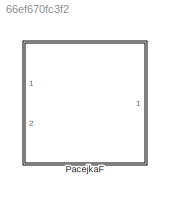
MODEL slx_66ef670fc3f2
KIND model
CONFIG AbsTol = auto
CONFIG EnableMultiTasking = off
CONFIG FixedStep = auto
CONFIG MaxStep = auto
CONFIG MinStep = auto
CONFIG RelTol = 1e-3
CONFIG SampleTimeConstraint = Unconstrained
CONFIG Solver = VariableStepAuto
CONFIG SolverName = VariableStepAuto
CONFIG StartTime = 0.0
CONFIG StopTime = 10.0
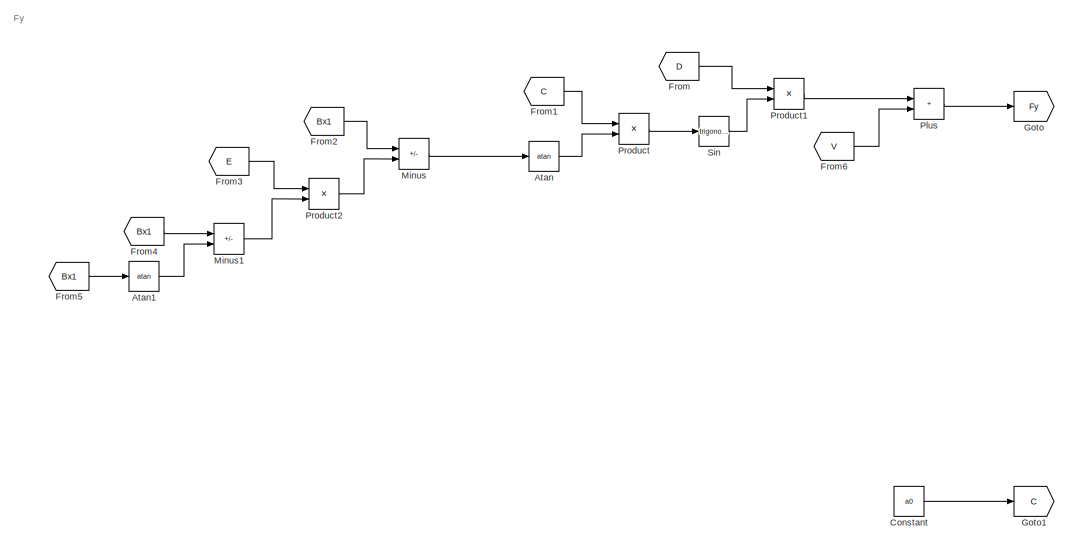
[diagram: PacejkaF - part 1/3, full width, top band]
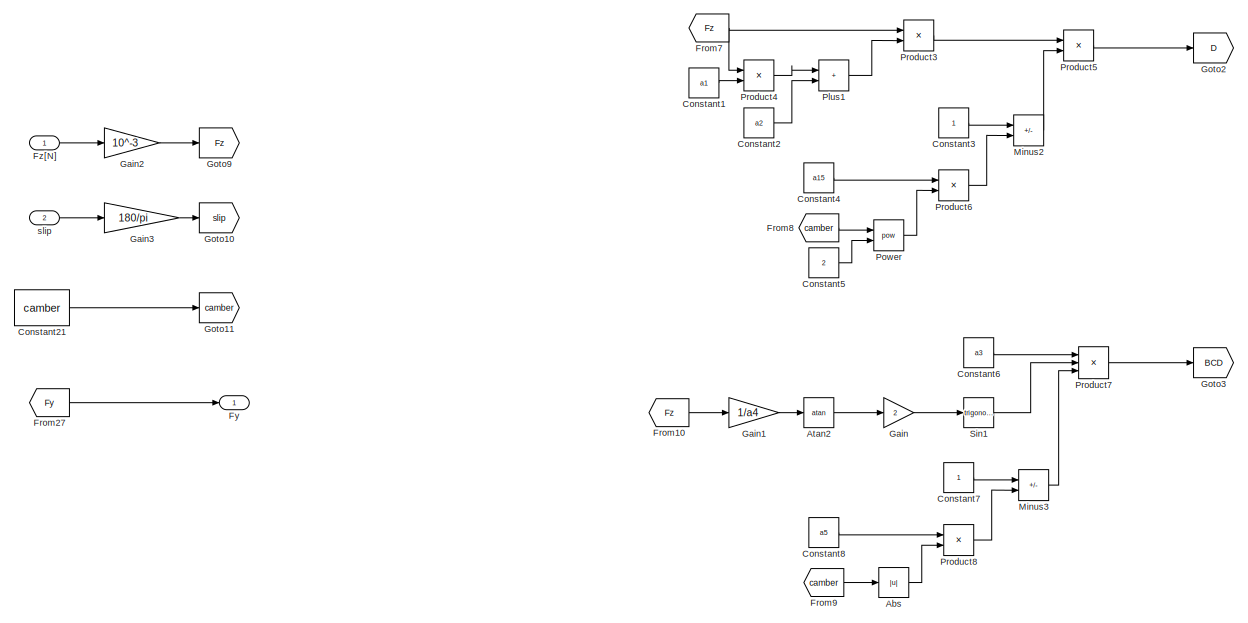
[diagram: PacejkaF - part 2/3, full width, middle band]
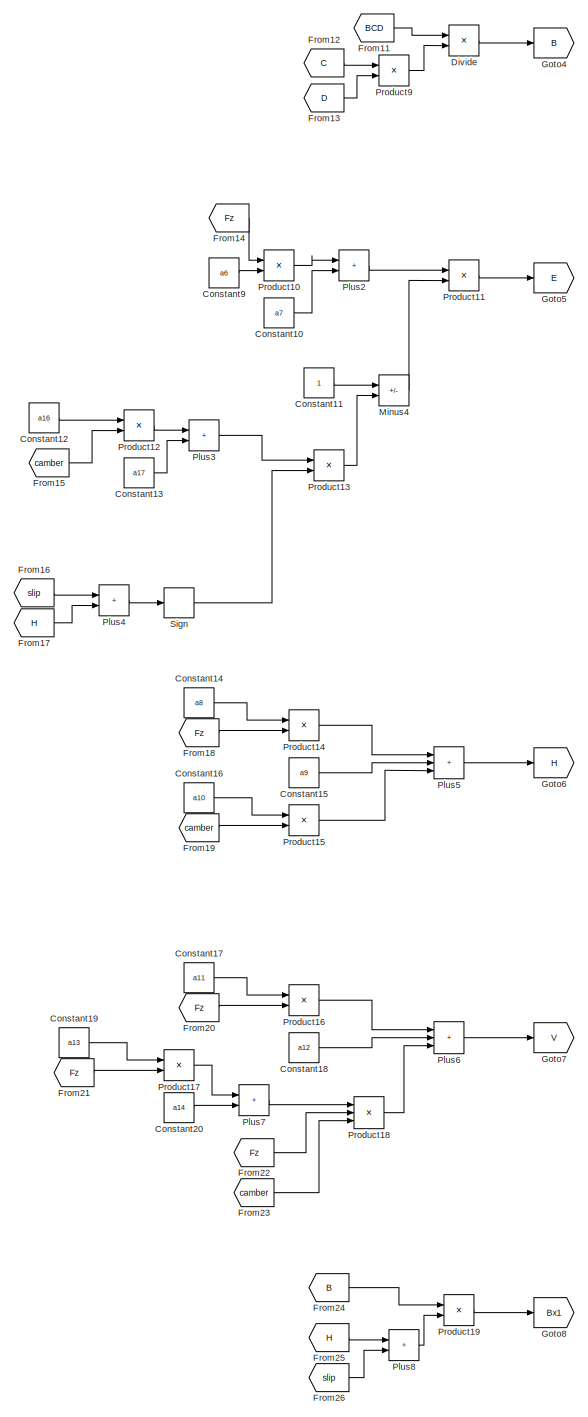
[diagram: PacejkaF - part 3/3, bottom right region]
BLOCK [SubSystem] PacejkaF
  Ports = [2, 1]
  RequestExecContextInheritance = off
BLOCK [Abs] PacejkaF/Abs
  SaturateOnIntegerOverflow = off
BLOCK [Trigonometry] PacejkaF/Atan
  Operator = atan
  Ports = [1, 1]
BLOCK [Trigonometry] PacejkaF/Atan1
  Operator = atan
  Ports = [1, 1]
BLOCK [Trigonometry] PacejkaF/Atan2
  Operator = atan
  Ports = [1, 1]
BLOCK [Constant] PacejkaF/Constant
  Value = a0
BLOCK [Constant] PacejkaF/Constant1
  Value = a1
BLOCK [Constant] PacejkaF/Constant10
  Value = a7
BLOCK [Constant] PacejkaF/Constant11
BLOCK [Constant] PacejkaF/Constant12
  Value = a16
BLOCK [Constant] PacejkaF/Constant13
  Value = a17
BLOCK [Constant] PacejkaF/Constant14
  Value = a8
BLOCK [Constant] PacejkaF/Constant15
  Value = a9
BLOCK [Constant] PacejkaF/Constant16
  Value = a10
BLOCK [Constant] PacejkaF/Constant17
  Value = a11
BLOCK [Constant] PacejkaF/Constant18
  Value = a12
BLOCK [Constant] PacejkaF/Constant19
  Value = a13
BLOCK [Constant] PacejkaF/Constant2
  Value = a2
BLOCK [Constant] PacejkaF/Constant20
  Value = a14
BLOCK [Constant] PacejkaF/Constant21
  Value = camber
BLOCK [Constant] PacejkaF/Constant3
BLOCK [Constant] PacejkaF/Constant4
  Value = a15
BLOCK [Constant] PacejkaF/Constant5
  Value = 2
BLOCK [Constant] PacejkaF/Constant6
  Value = a3
BLOCK [Constant] PacejkaF/Constant7
BLOCK [Constant] PacejkaF/Constant8
  Value = a5
BLOCK [Constant] PacejkaF/Constant9
  Value = a6
BLOCK [Product] PacejkaF/Divide
  Inputs = */
  Ports = [2, 1]
BLOCK [From] PacejkaF/From
  GotoTag = D
BLOCK [From] PacejkaF/From1
  GotoTag = C
BLOCK [From] PacejkaF/From10
  GotoTag = Fz
BLOCK [From] PacejkaF/From11
  GotoTag = BCD
BLOCK [From] PacejkaF/From12
  GotoTag = C
BLOCK [From] PacejkaF/From13
  GotoTag = D
BLOCK [From] PacejkaF/From14
  GotoTag = Fz
BLOCK [From] PacejkaF/From15
  GotoTag = camber
BLOCK [From] PacejkaF/From16
  GotoTag = slip
BLOCK [From] PacejkaF/From17
  GotoTag = H
BLOCK [From] PacejkaF/From18
  GotoTag = Fz
BLOCK [From] PacejkaF/From19
  GotoTag = camber
BLOCK [From] PacejkaF/From2
  GotoTag = Bx1
BLOCK [From] PacejkaF/From20
  GotoTag = Fz
BLOCK [From] PacejkaF/From21
  GotoTag = Fz
BLOCK [From] PacejkaF/From22
  GotoTag = Fz
BLOCK [From] PacejkaF/From23
  GotoTag = camber
BLOCK [From] PacejkaF/From24
  GotoTag = B
BLOCK [From] PacejkaF/From25
  GotoTag = H
BLOCK [From] PacejkaF/From26
  GotoTag = slip
BLOCK [From] PacejkaF/From27
  GotoTag = Fy
BLOCK [From] PacejkaF/From3
  GotoTag = E
BLOCK [From] PacejkaF/From4
  GotoTag = Bx1
BLOCK [From] PacejkaF/From5
  GotoTag = Bx1
BLOCK [From] PacejkaF/From6
  GotoTag = V
BLOCK [From] PacejkaF/From7
  GotoTag = Fz
BLOCK [From] PacejkaF/From8
  GotoTag = camber
BLOCK [From] PacejkaF/From9
  GotoTag = camber
BLOCK [Outport] PacejkaF/Fy
  Unit = N
BLOCK [Inport] PacejkaF/Fz[N]
  Unit = N
BLOCK [Gain] PacejkaF/Gain
  Gain = 2
BLOCK [Gain] PacejkaF/Gain1
  Gain = 1/a4
BLOCK [Gain] PacejkaF/Gain2
  Gain = 10^-3
BLOCK [Gain] PacejkaF/Gain3
  Gain = 180/pi
BLOCK [Goto] PacejkaF/Goto
  GotoTag = Fy
BLOCK [Goto] PacejkaF/Goto1
  GotoTag = C
BLOCK [Goto] PacejkaF/Goto10
  GotoTag = slip
BLOCK [Goto] PacejkaF/Goto11
  GotoTag = camber
BLOCK [Goto] PacejkaF/Goto2
  GotoTag = D
BLOCK [Goto] PacejkaF/Goto3
  GotoTag = BCD
BLOCK [Goto] PacejkaF/Goto4
  GotoTag = B
BLOCK [Goto] PacejkaF/Goto5
  GotoTag = E
BLOCK [Goto] PacejkaF/Goto6
  GotoTag = H
BLOCK [Goto] PacejkaF/Goto7
  GotoTag = V
BLOCK [Goto] PacejkaF/Goto8
  GotoTag = Bx1
BLOCK [Goto] PacejkaF/Goto9
  GotoTag = Fz
BLOCK [Sum] PacejkaF/Minus
  IconShape = rectangular
  Inputs = +-
  Ports = [2, 1]
BLOCK [Sum] PacejkaF/Minus1
  IconShape = rectangular
  Inputs = +-
  Ports = [2, 1]
BLOCK [Sum] PacejkaF/Minus2
  IconShape = rectangular
  Inputs = +-
  Ports = [2, 1]
BLOCK [Sum] PacejkaF/Minus3
  IconShape = rectangular
  Inputs = +-
  Ports = [2, 1]
BLOCK [Sum] PacejkaF/Minus4
  IconShape = rectangular
  Inputs = +-
  Ports = [2, 1]
BLOCK [Sum] PacejkaF/Plus
  IconShape = rectangular
  Ports = [2, 1]
BLOCK [Sum] PacejkaF/Plus1
  IconShape = rectangular
  Ports = [2, 1]
BLOCK [Sum] PacejkaF/Plus2
  IconShape = rectangular
  Ports = [2, 1]
BLOCK [Sum] PacejkaF/Plus3
  IconShape = rectangular
  Ports = [2, 1]
BLOCK [Sum] PacejkaF/Plus4
  IconShape = rectangular
  Ports = [2, 1]
BLOCK [Sum] PacejkaF/Plus5
  IconShape = rectangular
  Inputs = +++
  Ports = [3, 1]
BLOCK [Sum] PacejkaF/Plus6
  IconShape = rectangular
  Inputs = +++
  Ports = [3, 1]
BLOCK [Sum] PacejkaF/Plus7
  IconShape = rectangular
  Ports = [2, 1]
BLOCK [Sum] PacejkaF/Plus8
  IconShape = rectangular
  Ports = [2, 1]
BLOCK [Math] PacejkaF/Power
  Operator = pow
  Ports = [2, 1]
BLOCK [Product] PacejkaF/Product
  Ports = [2, 1]
BLOCK [Product] PacejkaF/Product1
  Ports = [2, 1]
BLOCK [Product] PacejkaF/Product10
  Ports = [2, 1]
BLOCK [Product] PacejkaF/Product11
  Ports = [2, 1]
BLOCK [Product] PacejkaF/Product12
  Ports = [2, 1]
BLOCK [Product] PacejkaF/Product13
  Ports = [2, 1]
BLOCK [Product] PacejkaF/Product14
  Ports = [2, 1]
BLOCK [Product] PacejkaF/Product15
  Ports = [2, 1]
BLOCK [Product] PacejkaF/Product16
  Ports = [2, 1]
BLOCK [Product] PacejkaF/Product17
  Ports = [2, 1]
BLOCK [Product] PacejkaF/Product18
  Inputs = 3
  Ports = [3, 1]
BLOCK [Product] PacejkaF/Product19
  Ports = [2, 1]
BLOCK [Product] PacejkaF/Product2
  Ports = [2, 1]
BLOCK [Product] PacejkaF/Product3
  Ports = [2, 1]
BLOCK [Product] PacejkaF/Product4
  Ports = [2, 1]
BLOCK [Product] PacejkaF/Product5
  Ports = [2, 1]
BLOCK [Product] PacejkaF/Product6
  Ports = [2, 1]
BLOCK [Product] PacejkaF/Product7
  Inputs = 3
  Ports = [3, 1]
BLOCK [Product] PacejkaF/Product8
  Ports = [2, 1]
BLOCK [Product] PacejkaF/Product9
  Ports = [2, 1]
BLOCK [Signum] PacejkaF/Sign
  ZeroCross = off
BLOCK [Trigonometry] PacejkaF/Sin
  Ports = [1, 1]
BLOCK [Trigonometry] PacejkaF/Sin1
  Ports = [1, 1]
BLOCK [Inport] PacejkaF/slip
  Port = 2
  Unit = rad
ANNOTATION PacejkaF: Fy
LINE PacejkaF/Abs:1 -> PacejkaF/Product8:2
LINE PacejkaF/Atan1:1 -> PacejkaF/Minus1:2
LINE PacejkaF/Atan2:1 -> PacejkaF/Gain:1
LINE PacejkaF/Atan:1 -> PacejkaF/Product:2
LINE PacejkaF/Constant10:1 -> PacejkaF/Plus2:2
LINE PacejkaF/Constant11:1 -> PacejkaF/Minus4:1
LINE PacejkaF/Constant12:1 -> PacejkaF/Product12:1
LINE PacejkaF/Constant13:1 -> PacejkaF/Plus3:2
LINE PacejkaF/Constant14:1 -> PacejkaF/Product14:1
LINE PacejkaF/Constant15:1 -> PacejkaF/Plus5:2
LINE PacejkaF/Constant16:1 -> PacejkaF/Product15:1
LINE PacejkaF/Constant17:1 -> PacejkaF/Product16:1
LINE PacejkaF/Constant18:1 -> PacejkaF/Plus6:2
LINE PacejkaF/Constant19:1 -> PacejkaF/Product17:1
LINE PacejkaF/Constant1:1 -> PacejkaF/Product4:2
LINE PacejkaF/Constant20:1 -> PacejkaF/Plus7:2
LINE PacejkaF/Constant21:1 -> PacejkaF/Goto11:1
LINE PacejkaF/Constant2:1 -> PacejkaF/Plus1:2
LINE PacejkaF/Constant3:1 -> PacejkaF/Minus2:1
LINE PacejkaF/Constant4:1 -> PacejkaF/Product6:1
LINE PacejkaF/Constant5:1 -> PacejkaF/Power:2
LINE PacejkaF/Constant6:1 -> PacejkaF/Product7:1
LINE PacejkaF/Constant7:1 -> PacejkaF/Minus3:1
LINE PacejkaF/Constant8:1 -> PacejkaF/Product8:1
LINE PacejkaF/Constant9:1 -> PacejkaF/Product10:2
LINE PacejkaF/Constant:1 -> PacejkaF/Goto1:1
LINE PacejkaF/Divide:1 -> PacejkaF/Goto4:1
LINE PacejkaF/From10:1 -> PacejkaF/Gain1:1
LINE PacejkaF/From11:1 -> PacejkaF/Divide:1
LINE PacejkaF/From12:1 -> PacejkaF/Product9:1
LINE PacejkaF/From13:1 -> PacejkaF/Product9:2
LINE PacejkaF/From14:1 -> PacejkaF/Product10:1
LINE PacejkaF/From15:1 -> PacejkaF/Product12:2
LINE PacejkaF/From16:1 -> PacejkaF/Plus4:1
LINE PacejkaF/From17:1 -> PacejkaF/Plus4:2
LINE PacejkaF/From18:1 -> PacejkaF/Product14:2
LINE PacejkaF/From19:1 -> PacejkaF/Product15:2
LINE PacejkaF/From1:1 -> PacejkaF/Product:1
LINE PacejkaF/From20:1 -> PacejkaF/Product16:2
LINE PacejkaF/From21:1 -> PacejkaF/Product17:2
LINE PacejkaF/From22:1 -> PacejkaF/Product18:2
LINE PacejkaF/From23:1 -> PacejkaF/Product18:3
LINE PacejkaF/From24:1 -> PacejkaF/Product19:1
LINE PacejkaF/From25:1 -> PacejkaF/Plus8:1
LINE PacejkaF/From26:1 -> PacejkaF/Plus8:2
LINE PacejkaF/From27:1 -> PacejkaF/Fy:1
LINE PacejkaF/From2:1 -> PacejkaF/Minus:1
LINE PacejkaF/From3:1 -> PacejkaF/Product2:1
LINE PacejkaF/From4:1 -> PacejkaF/Minus1:1
LINE PacejkaF/From5:1 -> PacejkaF/Atan1:1
LINE PacejkaF/From6:1 -> PacejkaF/Plus:2
NET PacejkaF/From7:1 -> PacejkaF/Product3:1, PacejkaF/Product4:1
LINE PacejkaF/From8:1 -> PacejkaF/Power:1
LINE PacejkaF/From9:1 -> PacejkaF/Abs:1
LINE PacejkaF/From:1 -> PacejkaF/Product1:1
LINE PacejkaF/Fz[N]:1 -> PacejkaF/Gain2:1
LINE PacejkaF/Gain1:1 -> PacejkaF/Atan2:1
LINE PacejkaF/Gain2:1 -> PacejkaF/Goto9:1
LINE PacejkaF/Gain3:1 -> PacejkaF/Goto10:1
LINE PacejkaF/Gain:1 -> PacejkaF/Sin1:1
LINE PacejkaF/Minus1:1 -> PacejkaF/Product2:2
LINE PacejkaF/Minus2:1 -> PacejkaF/Product5:2
LINE PacejkaF/Minus3:1 -> PacejkaF/Product7:3
LINE PacejkaF/Minus4:1 -> PacejkaF/Product11:2
LINE PacejkaF/Minus:1 -> PacejkaF/Atan:1
LINE PacejkaF/Plus1:1 -> PacejkaF/Product3:2
LINE PacejkaF/Plus2:1 -> PacejkaF/Product11:1
LINE PacejkaF/Plus3:1 -> PacejkaF/Product13:1
LINE PacejkaF/Plus4:1 -> PacejkaF/Sign:1
LINE PacejkaF/Plus5:1 -> PacejkaF/Goto6:1
LINE PacejkaF/Plus6:1 -> PacejkaF/Goto7:1
LINE PacejkaF/Plus7:1 -> PacejkaF/Product18:1
LINE PacejkaF/Plus8:1 -> PacejkaF/Product19:2
LINE PacejkaF/Plus:1 -> PacejkaF/Goto:1
LINE PacejkaF/Power:1 -> PacejkaF/Product6:2
LINE PacejkaF/Product10:1 -> PacejkaF/Plus2:1
LINE PacejkaF/Product11:1 -> PacejkaF/Goto5:1
LINE PacejkaF/Product12:1 -> PacejkaF/Plus3:1
LINE PacejkaF/Product13:1 -> PacejkaF/Minus4:2
LINE PacejkaF/Product14:1 -> PacejkaF/Plus5:1
LINE PacejkaF/Product15:1 -> PacejkaF/Plus5:3
LINE PacejkaF/Product16:1 -> PacejkaF/Plus6:1
LINE PacejkaF/Product17:1 -> PacejkaF/Plus7:1
LINE PacejkaF/Product18:1 -> PacejkaF/Plus6:3
LINE PacejkaF/Product19:1 -> PacejkaF/Goto8:1
LINE PacejkaF/Product1:1 -> PacejkaF/Plus:1
LINE PacejkaF/Product2:1 -> PacejkaF/Minus:2
LINE PacejkaF/Product3:1 -> PacejkaF/Product5:1
LINE PacejkaF/Product4:1 -> PacejkaF/Plus1:1
LINE PacejkaF/Product5:1 -> PacejkaF/Goto2:1
LINE PacejkaF/Product6:1 -> PacejkaF/Minus2:2
LINE PacejkaF/Product7:1 -> PacejkaF/Goto3:1
LINE PacejkaF/Product8:1 -> PacejkaF/Minus3:2
LINE PacejkaF/Product9:1 -> PacejkaF/Divide:2
LINE PacejkaF/Product:1 -> PacejkaF/Sin:1
LINE PacejkaF/Sign:1 -> PacejkaF/Product13:2
LINE PacejkaF/Sin1:1 -> PacejkaF/Product7:2
LINE PacejkaF/Sin:1 -> PacejkaF/Product1:2
LINE PacejkaF/slip:1 -> PacejkaF/Gain3:1
note: NET lines group one-source signal fan-out (src -> all destinations, sorted); 1:1 wires keep LINE
